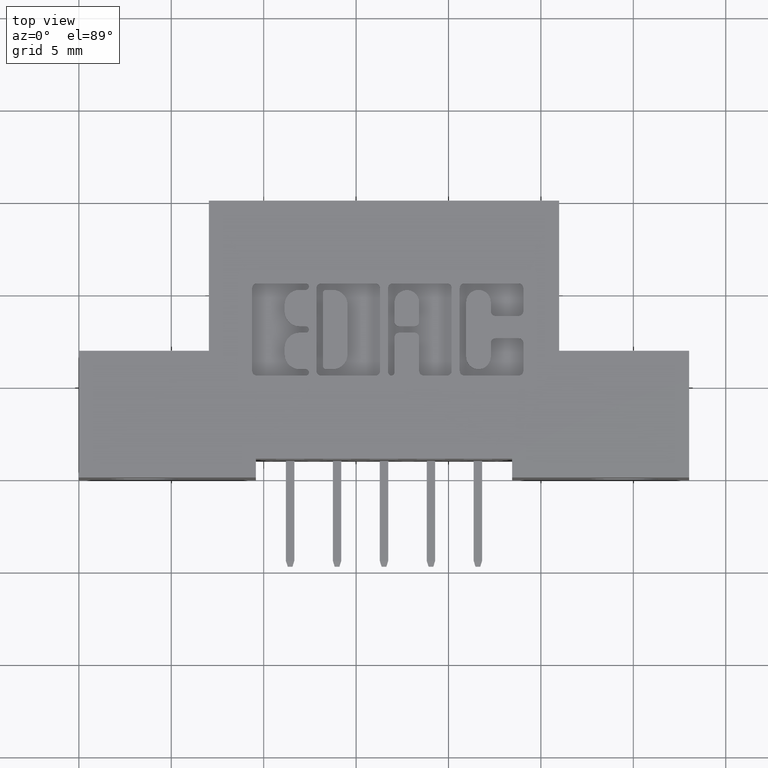
[diagram: clean part render]
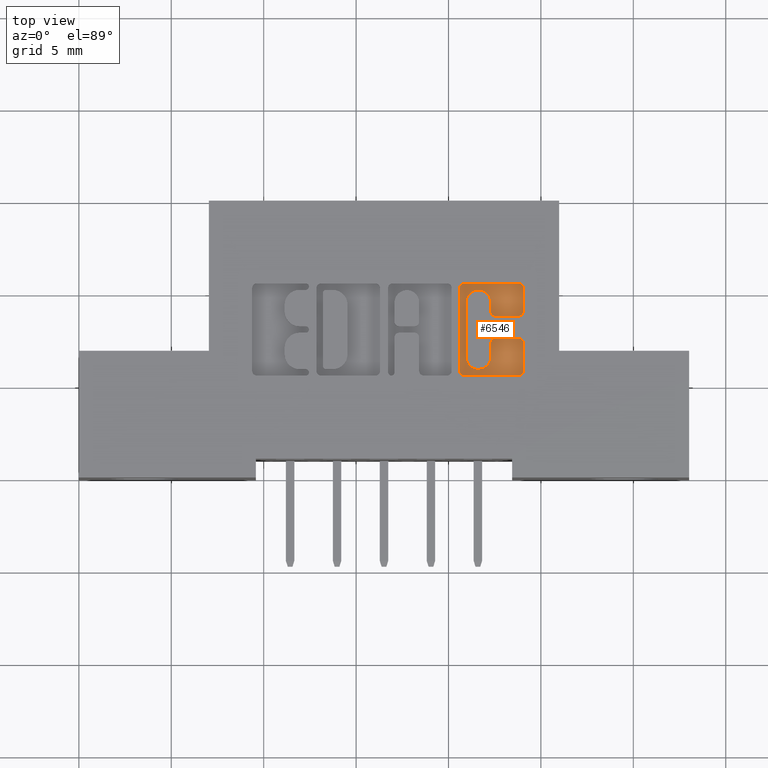
[diagram: same view with one face highlighted and labeled with its STEP entity id]
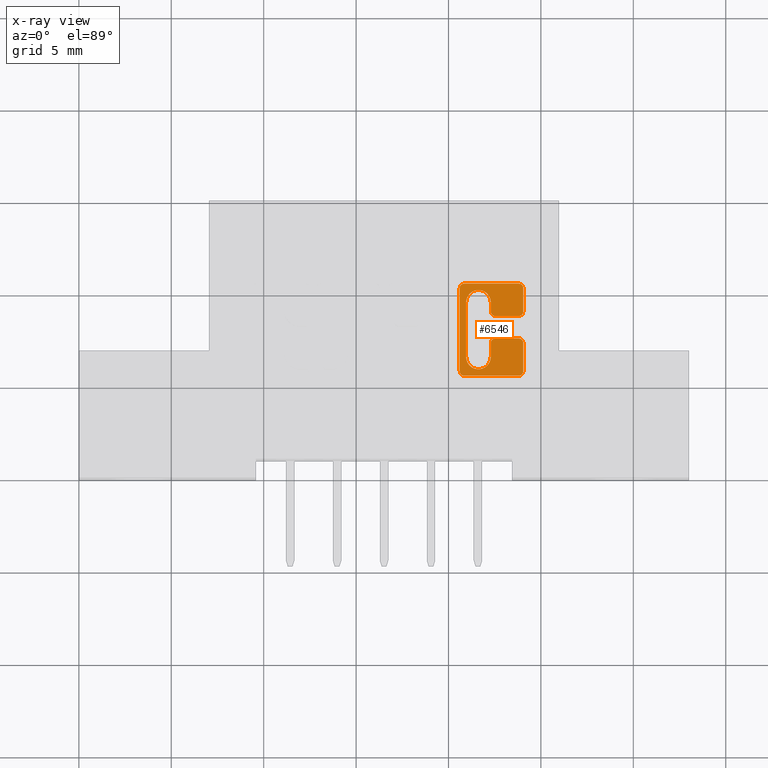
[diagram: x-ray of the same camera — body ghosted, the highlighted face saturated]
A machine part, top view. The second image highlights one B-rep face of the part: STEP entity #6546.
The next image is the same camera in x-ray: the body ghosted, the highlighted face saturated — about 0% of this face is hidden behind the body in this view.
In plain terms, the highlighted planar face has unit normal (0, 0, 1).
Its self-contained STEP definition (entity closure, byte-faithful):
#11 = CARTESIAN_POINT ( 'NONE',  ( 0.8774781569731788800, 0.0000000000000000000, -0.01000000000000000000 ) ) ;
#58 = ORIENTED_EDGE ( 'NONE', *, *, #5382, .T. ) ;
#125 = LINE ( 'NONE', #7700, #6508 ) ;
#305 = PLANE ( 'NONE',  #7063 ) ;
#318 = VECTOR ( 'NONE', #1307, 39.37007874015748100 ) ;
#345 = VERTEX_POINT ( 'NONE', #7572 ) ;
#506 = VECTOR ( 'NONE', #837, 39.37007874015748100 ) ;
#537 = CARTESIAN_POINT ( 'NONE',  ( 0.8774781569731788800, 0.2568421540424529200, -0.01000000000000000000 ) ) ;
#630 = ORIENTED_EDGE ( 'NONE', *, *, #6422, .T. ) ;
#661 = AXIS2_PLACEMENT_3D ( 'NONE', #2483, #6870, #3105 ) ;
#683 = LINE ( 'NONE', #948, #7046 ) ;
#739 = VERTEX_POINT ( 'NONE', #4091 ) ;
#837 = DIRECTION ( 'NONE',  ( 0.0000000000000000000, -1.000000000000000000, 0.0000000000000000000 ) ) ;
#948 = CARTESIAN_POINT ( 'NONE',  ( 0.9466786319099720300, 0.0000000000000000000, -0.01000000000000000000 ) ) ;
#993 = EDGE_CURVE ( 'NONE', #5588, #2984, #7611, .T. ) ;
#1043 = DIRECTION ( 'NONE',  ( -1.000000000000000000, 0.0000000000000000000, 0.0000000000000000000 ) ) ;
#1049 = ORIENTED_EDGE ( 'NONE', *, *, #6565, .T. ) ;
#1078 = VECTOR ( 'NONE', #6067, 39.37007874015748100 ) ;
#1097 = CARTESIAN_POINT ( 'NONE',  ( 0.9368629617061682300, 0.4131567020380509400, -0.01000000000000000000 ) ) ;
#1118 = ORIENTED_EDGE ( 'NONE', *, *, #2408, .T. ) ;
#1213 = ORIENTED_EDGE ( 'NONE', *, *, #7687, .T. ) ;
#1258 = CIRCLE ( 'NONE', #2690, 0.009815670203787221800 ) ;
#1307 = DIRECTION ( 'NONE',  ( 1.000000000000000000, 0.0000000000000000000, 0.0000000000000000000 ) ) ;
#1308 = VERTEX_POINT ( 'NONE', #6470 ) ;
#1328 = ORIENTED_EDGE ( 'NONE', *, *, #5528, .T. ) ;
#1353 = VECTOR ( 'NONE', #5604, 39.37007874015748100 ) ;
#1401 = VERTEX_POINT ( 'NONE', #4712 ) ;
#1551 = CARTESIAN_POINT ( 'NONE',  ( 0.9368629617061342600, 0.2266589681657898700, -0.01000000000000000000 ) ) ;
#1717 = AXIS2_PLACEMENT_3D ( 'NONE', #7198, #3448, #7780 ) ;
#1734 = CARTESIAN_POINT ( 'NONE',  ( 0.8112223830974585300, 0.0000000000000000000, -0.01000000000000000000 ) ) ;
#1802 = DIRECTION ( 'NONE',  ( -0.0000000000000000000, 0.0000000000000000000, 1.000000000000000000 ) ) ;
#1809 = LINE ( 'NONE', #1734, #3017 ) ;
#1817 = CARTESIAN_POINT ( 'NONE',  ( 0.8210380533012994200, 0.4131567020380509400, -0.01000000000000000000 ) ) ;
#1833 = VERTEX_POINT ( 'NONE', #6760 ) ;
#1887 = VERTEX_POINT ( 'NONE', #7402 ) ;
#2078 = ORIENTED_EDGE ( 'NONE', *, *, #5435, .T. ) ;
#2093 = ORIENTED_EDGE ( 'NONE', *, *, #3467, .F. ) ;
#2107 = DIRECTION ( 'NONE',  ( 1.000000000000000000, 0.0000000000000000000, 0.0000000000000000000 ) ) ;
#2117 = DIRECTION ( 'NONE',  ( -0.0000000000000000000, 0.0000000000000000000, 1.000000000000000000 ) ) ;
#2133 = DIRECTION ( 'NONE',  ( 1.000000000000000000, 0.0000000000000000000, 0.0000000000000000000 ) ) ;
#2152 = CARTESIAN_POINT ( 'NONE',  ( 0.8872938271769669200, 0.2865345564089695200, -0.01000000000000000000 ) ) ;
#2179 = CIRCLE ( 'NONE', #7168, 0.009815670203788042300 ) ;
#2200 = CARTESIAN_POINT ( 'NONE',  ( 0.0000000000000000000, 0.4131567020380509400, -0.01000000000000000000 ) ) ;
#2221 = CARTESIAN_POINT ( 'NONE',  ( 0.8774781569731657800, 0.3731578454992598400, -0.01000000000000000000 ) ) ;
#2259 = EDGE_CURVE ( 'NONE', #739, #345, #1809, .T. ) ;
#2313 = CARTESIAN_POINT ( 'NONE',  ( 0.8872938271769669200, 0.2963502266127574500, -0.01000000000000000000 ) ) ;
#2329 = ORIENTED_EDGE ( 'NONE', *, *, #5476, .T. ) ;
#2408 = EDGE_CURVE ( 'NONE', #1401, #4684, #7283, .T. ) ;
#2418 = VERTEX_POINT ( 'NONE', #2221 ) ;
#2434 = EDGE_CURVE ( 'NONE', #1308, #5531, #6720, .T. ) ;
#2483 = CARTESIAN_POINT ( 'NONE',  ( 0.8872938271769774700, 0.3537718973050451600, -0.01000000000000000000 ) ) ;
#2690 = AXIS2_PLACEMENT_3D ( 'NONE', #7282, #3549, #7858 ) ;
#2692 = VERTEX_POINT ( 'NONE', #2313 ) ;
#2693 = DIRECTION ( 'NONE',  ( 1.000000000000000000, 0.0000000000000000000, 0.0000000000000000000 ) ) ;
#2759 = DIRECTION ( 'NONE',  ( -0.0000000000000000000, 0.0000000000000000000, 1.000000000000000000 ) ) ;
#2853 = CARTESIAN_POINT ( 'NONE',  ( 0.0000000000000000000, 0.2963502266127574500, -0.01000000000000000000 ) ) ;
#2887 = DIRECTION ( 'NONE',  ( -1.000000000000000000, 0.0000000000000000000, 0.0000000000000000000 ) ) ;
#2984 = VERTEX_POINT ( 'NONE', #537 ) ;
#3017 = VECTOR ( 'NONE', #5094, 39.37007874015748100 ) ;
#3105 = DIRECTION ( 'NONE',  ( 1.000000000000000000, 0.0000000000000000000, 0.0000000000000000000 ) ) ;
#3117 = VECTOR ( 'NONE', #1043, 39.37007874015748100 ) ;
#3140 = LINE ( 'NONE', #5850, #1353 ) ;
#3171 = ORIENTED_EDGE ( 'NONE', *, *, #5606, .T. ) ;
#3238 = ORIENTED_EDGE ( 'NONE', *, *, #4721, .T. ) ;
#3331 = CARTESIAN_POINT ( 'NONE',  ( 0.8249643213828183900, 0.0000000000000000000, -0.01000000000000000000 ) ) ;
#3341 = CIRCLE ( 'NONE', #7689, 0.02625691779518036400 ) ;
#3448 = DIRECTION ( 'NONE',  ( -0.0000000000000000000, 0.0000000000000000000, 1.000000000000000000 ) ) ;
#3462 = VERTEX_POINT ( 'NONE', #5617 ) ;
#3467 = EDGE_CURVE ( 'NONE', #2418, #4684, #4065, .T. ) ;
#3528 = LINE ( 'NONE', #4520, #506 ) ;
#3549 = DIRECTION ( 'NONE',  ( -0.0000000000000000000, 0.0000000000000000000, 1.000000000000000000 ) ) ;
#3553 = LINE ( 'NONE', #4986, #318 ) ;
#3569 = VERTEX_POINT ( 'NONE', #7735 ) ;
#3579 = VECTOR ( 'NONE', #4535, 39.37007874015748100 ) ;
#3603 = ORIENTED_EDGE ( 'NONE', *, *, #5114, .T. ) ;
#3609 = CARTESIAN_POINT ( 'NONE',  ( 0.8249643213828183900, 0.3731578459575295400, -0.01000000000000000000 ) ) ;
#3697 = ORIENTED_EDGE ( 'NONE', *, *, #4508, .T. ) ;
#3862 = DIRECTION ( 'NONE',  ( -0.0000000000000000000, 0.0000000000000000000, 1.000000000000000000 ) ) ;
#3923 = CARTESIAN_POINT ( 'NONE',  ( 0.9466786319099401700, 0.2266589681657829000, -0.01000000000000000000 ) ) ;
#3947 = CARTESIAN_POINT ( 'NONE',  ( 0.8774781569731657800, 0.3537718973050451600, -0.01000000000000000000 ) ) ;
#3951 = ORIENTED_EDGE ( 'NONE', *, *, #6586, .T. ) ;
#3968 = CARTESIAN_POINT ( 'NONE',  ( 0.0000000000000000000, 0.0000000000000000000, -0.01000000000000000000 ) ) ;
#4002 = ORIENTED_EDGE ( 'NONE', *, *, #2259, .T. ) ;
#4065 = CIRCLE ( 'NONE', #7263, 0.02625691779517380600 ) ;
#4091 = CARTESIAN_POINT ( 'NONE',  ( 0.8112223830974585300, 0.4033410318342100500, -0.01000000000000000000 ) ) ;
#4310 = CARTESIAN_POINT ( 'NONE',  ( 0.9368629617061670100, 0.3439562271012335200, -0.01000000000000000000 ) ) ;
#4399 = ORIENTED_EDGE ( 'NONE', *, *, #6727, .T. ) ;
#4415 = LINE ( 'NONE', #2853, #7506 ) ;
#4484 = EDGE_CURVE ( 'NONE', #1401, #2984, #3341, .T. ) ;
#4508 = EDGE_CURVE ( 'NONE', #3462, #5051, #125, .T. ) ;
#4520 = CARTESIAN_POINT ( 'NONE',  ( 0.8774781569731657800, 0.0000000000000000000, -0.01000000000000000000 ) ) ;
#4535 = DIRECTION ( 'NONE',  ( 0.0000000000000000000, 1.000000000000000000, -0.0000000000000000000 ) ) ;
#4575 = ORIENTED_EDGE ( 'NONE', *, *, #2434, .T. ) ;
#4581 = EDGE_CURVE ( 'NONE', #5295, #1887, #3140, .T. ) ;
#4684 = VERTEX_POINT ( 'NONE', #3609 ) ;
#4712 = CARTESIAN_POINT ( 'NONE',  ( 0.8249643213828183900, 0.2568421540424529200, -0.01000000000000000000 ) ) ;
#4721 = EDGE_CURVE ( 'NONE', #2692, #5588, #2179, .T. ) ;
#4817 = LINE ( 'NONE', #2200, #3117 ) ;
#4829 = CARTESIAN_POINT ( 'NONE',  ( 0.8774781569731788800, 0.2865345564089686300, -0.01000000000000000000 ) ) ;
#4855 = ORIENTED_EDGE ( 'NONE', *, *, #4581, .T. ) ;
#4943 = ORIENTED_EDGE ( 'NONE', *, *, #993, .T. ) ;
#4986 = CARTESIAN_POINT ( 'NONE',  ( 0.0000000000000000000, 0.3439562271012335200, -0.01000000000000000000 ) ) ;
#5051 = VERTEX_POINT ( 'NONE', #5535 ) ;
#5094 = DIRECTION ( 'NONE',  ( 0.0000000000000000000, -1.000000000000000000, 0.0000000000000000000 ) ) ;
#5114 = EDGE_CURVE ( 'NONE', #7733, #6803, #5717, .T. ) ;
#5295 = VERTEX_POINT ( 'NONE', #3923 ) ;
#5355 = DIRECTION ( 'NONE',  ( 1.000000000000000000, 0.0000000000000000000, 0.0000000000000000000 ) ) ;
#5371 = DIRECTION ( 'NONE',  ( -0.0000000000000000000, 0.0000000000000000000, 1.000000000000000000 ) ) ;
#5382 = EDGE_CURVE ( 'NONE', #3569, #1308, #683, .T. ) ;
#5394 = CARTESIAN_POINT ( 'NONE',  ( 0.8512212391779921900, 0.3731578459575295400, -0.01000000000000000000 ) ) ;
#5435 = EDGE_CURVE ( 'NONE', #345, #3462, #6681, .T. ) ;
#5460 = EDGE_LOOP ( 'NONE', ( #630, #3951, #58, #4575, #2329, #3171, #4002, #2078, #3697, #1049, #4855, #4399, #1328, #3238, #4943, #6236, #1118, #2093, #1213, #3603 ) ) ;
#5476 = EDGE_CURVE ( 'NONE', #5531, #6317, #4817, .T. ) ;
#5525 = CARTESIAN_POINT ( 'NONE',  ( 0.8210380533012994200, 0.4033410318342100500, -0.01000000000000000000 ) ) ;
#5527 = CIRCLE ( 'NONE', #7856, 0.009815670203804980100 ) ;
#5528 = EDGE_CURVE ( 'NONE', #1833, #2692, #4415, .T. ) ;
#5531 = VERTEX_POINT ( 'NONE', #1097 ) ;
#5535 = CARTESIAN_POINT ( 'NONE',  ( 0.9368629617061342600, 0.2168432979619831200, -0.01000000000000000000 ) ) ;
#5588 = VERTEX_POINT ( 'NONE', #4829 ) ;
#5604 = DIRECTION ( 'NONE',  ( 0.0000000000000000000, 1.000000000000000000, -0.0000000000000000000 ) ) ;
#5606 = EDGE_CURVE ( 'NONE', #6317, #739, #6319, .T. ) ;
#5617 = CARTESIAN_POINT ( 'NONE',  ( 0.8210380533012652200, 0.2168432979619831200, -0.01000000000000000000 ) ) ;
#5670 = VERTEX_POINT ( 'NONE', #4310 ) ;
#5707 = DIRECTION ( 'NONE',  ( 1.000000000000000000, 0.0000000000000000000, 0.0000000000000000000 ) ) ;
#5717 = CIRCLE ( 'NONE', #661, 0.009815670203811672700 ) ;
#5850 = CARTESIAN_POINT ( 'NONE',  ( 0.9466786319099401700, 0.0000000000000000000, -0.01000000000000000000 ) ) ;
#5895 = DIRECTION ( 'NONE',  ( -0.0000000000000000000, 0.0000000000000000000, 1.000000000000000000 ) ) ;
#5921 = FACE_OUTER_BOUND ( 'NONE', #5460, .T. ) ;
#5980 = AXIS2_PLACEMENT_3D ( 'NONE', #7642, #3862, #5707 ) ;
#6067 = DIRECTION ( 'NONE',  ( 0.0000000000000000000, -1.000000000000000000, 0.0000000000000000000 ) ) ;
#6151 = DIRECTION ( 'NONE',  ( 1.000000000000000000, 0.0000000000000000000, 0.0000000000000000000 ) ) ;
#6236 = ORIENTED_EDGE ( 'NONE', *, *, #4484, .F. ) ;
#6317 = VERTEX_POINT ( 'NONE', #1817 ) ;
#6319 = CIRCLE ( 'NONE', #7121, 0.009815670203840902800 ) ;
#6422 = EDGE_CURVE ( 'NONE', #6803, #5670, #3553, .T. ) ;
#6470 = CARTESIAN_POINT ( 'NONE',  ( 0.9466786319099720300, 0.4033410318341947300, -0.01000000000000000000 ) ) ;
#6488 = DIRECTION ( 'NONE',  ( -0.0000000000000000000, 0.0000000000000000000, 1.000000000000000000 ) ) ;
#6508 = VECTOR ( 'NONE', #7501, 39.37007874015748100 ) ;
#6546 = ADVANCED_FACE ( 'NONE', ( #5921 ), #305, .T. ) ;
#6559 = CARTESIAN_POINT ( 'NONE',  ( 0.9368629617061670100, 0.3537718973050385500, -0.01000000000000000000 ) ) ;
#6565 = EDGE_CURVE ( 'NONE', #5051, #5295, #7342, .T. ) ;
#6586 = EDGE_CURVE ( 'NONE', #5670, #3569, #5527, .T. ) ;
#6670 = AXIS2_PLACEMENT_3D ( 'NONE', #1551, #5895, #2133 ) ;
#6681 = CIRCLE ( 'NONE', #1717, 0.009815670203806754800 ) ;
#6720 = CIRCLE ( 'NONE', #5980, 0.009815670203840084000 ) ;
#6727 = EDGE_CURVE ( 'NONE', #1887, #1833, #1258, .T. ) ;
#6760 = CARTESIAN_POINT ( 'NONE',  ( 0.9368629617061565700, 0.2963502266127574500, -0.01000000000000000000 ) ) ;
#6803 = VERTEX_POINT ( 'NONE', #7350 ) ;
#6870 = DIRECTION ( 'NONE',  ( -0.0000000000000000000, 0.0000000000000000000, 1.000000000000000000 ) ) ;
#7046 = VECTOR ( 'NONE', #7724, 39.37007874015748100 ) ;
#7063 = AXIS2_PLACEMENT_3D ( 'NONE', #3968, #6488, #2693 ) ;
#7121 = AXIS2_PLACEMENT_3D ( 'NONE', #5525, #1802, #6151 ) ;
#7151 = DIRECTION ( 'NONE',  ( 1.000000000000000000, 0.0000000000000000000, 0.0000000000000000000 ) ) ;
#7168 = AXIS2_PLACEMENT_3D ( 'NONE', #2152, #2117, #2107 ) ;
#7198 = CARTESIAN_POINT ( 'NONE',  ( 0.8210380533012652200, 0.2266589681657898700, -0.01000000000000000000 ) ) ;
#7263 = AXIS2_PLACEMENT_3D ( 'NONE', #5394, #5371, #5355 ) ;
#7282 = CARTESIAN_POINT ( 'NONE',  ( 0.9368629617061530200, 0.2865345564089703500, -0.01000000000000000000 ) ) ;
#7283 = LINE ( 'NONE', #3331, #3579 ) ;
#7304 = DIRECTION ( 'NONE',  ( 1.000000000000000000, 0.0000000000000000000, 0.0000000000000000000 ) ) ;
#7332 = DIRECTION ( 'NONE',  ( -0.0000000000000000000, 0.0000000000000000000, 1.000000000000000000 ) ) ;
#7342 = CIRCLE ( 'NONE', #6670, 0.009815670203806345400 ) ;
#7350 = CARTESIAN_POINT ( 'NONE',  ( 0.8872938271769774700, 0.3439562271012335200, -0.01000000000000000000 ) ) ;
#7383 = CARTESIAN_POINT ( 'NONE',  ( 0.8512212391779987500, 0.2568421540424529200, -0.01000000000000000000 ) ) ;
#7402 = CARTESIAN_POINT ( 'NONE',  ( 0.9466786319099401700, 0.2865345564089703500, -0.01000000000000000000 ) ) ;
#7501 = DIRECTION ( 'NONE',  ( 1.000000000000000000, 0.0000000000000000000, 0.0000000000000000000 ) ) ;
#7506 = VECTOR ( 'NONE', #2887, 39.37007874015748100 ) ;
#7572 = CARTESIAN_POINT ( 'NONE',  ( 0.8112223830974585300, 0.2266589681657898700, -0.01000000000000000000 ) ) ;
#7611 = LINE ( 'NONE', #11, #1078 ) ;
#7642 = CARTESIAN_POINT ( 'NONE',  ( 0.9368629617061319200, 0.4033410318342108800, -0.01000000000000000000 ) ) ;
#7687 = EDGE_CURVE ( 'NONE', #2418, #7733, #3528, .T. ) ;
#7689 = AXIS2_PLACEMENT_3D ( 'NONE', #7383, #7332, #7304 ) ;
#7700 = CARTESIAN_POINT ( 'NONE',  ( 0.0000000000000000000, 0.2168432979619831200, -0.01000000000000000000 ) ) ;
#7724 = DIRECTION ( 'NONE',  ( 0.0000000000000000000, 1.000000000000000000, -0.0000000000000000000 ) ) ;
#7733 = VERTEX_POINT ( 'NONE', #3947 ) ;
#7735 = CARTESIAN_POINT ( 'NONE',  ( 0.9466786319099720300, 0.3537718973050385500, -0.01000000000000000000 ) ) ;
#7780 = DIRECTION ( 'NONE',  ( 1.000000000000000000, 0.0000000000000000000, 0.0000000000000000000 ) ) ;
#7856 = AXIS2_PLACEMENT_3D ( 'NONE', #6559, #2759, #7151 ) ;
#7858 = DIRECTION ( 'NONE',  ( 1.000000000000000000, 0.0000000000000000000, 0.0000000000000000000 ) ) ;